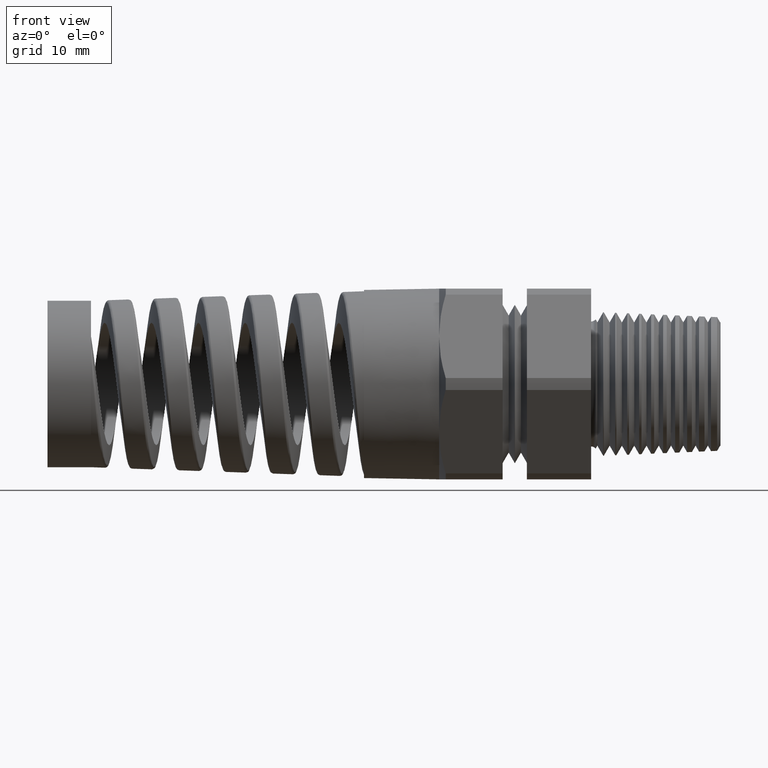
[diagram: clean part render]
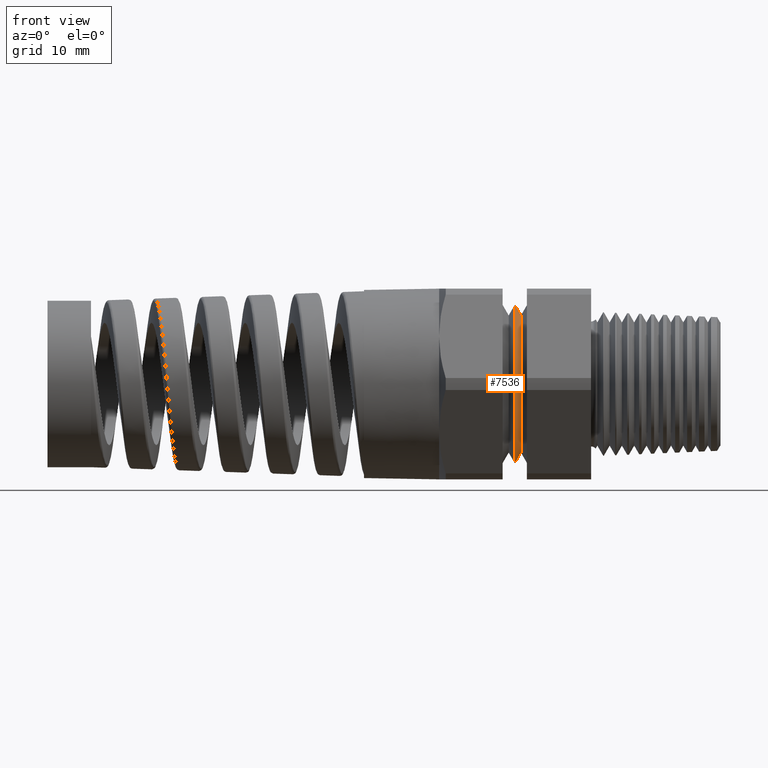
[diagram: same view with one face highlighted and labeled with its STEP entity id]
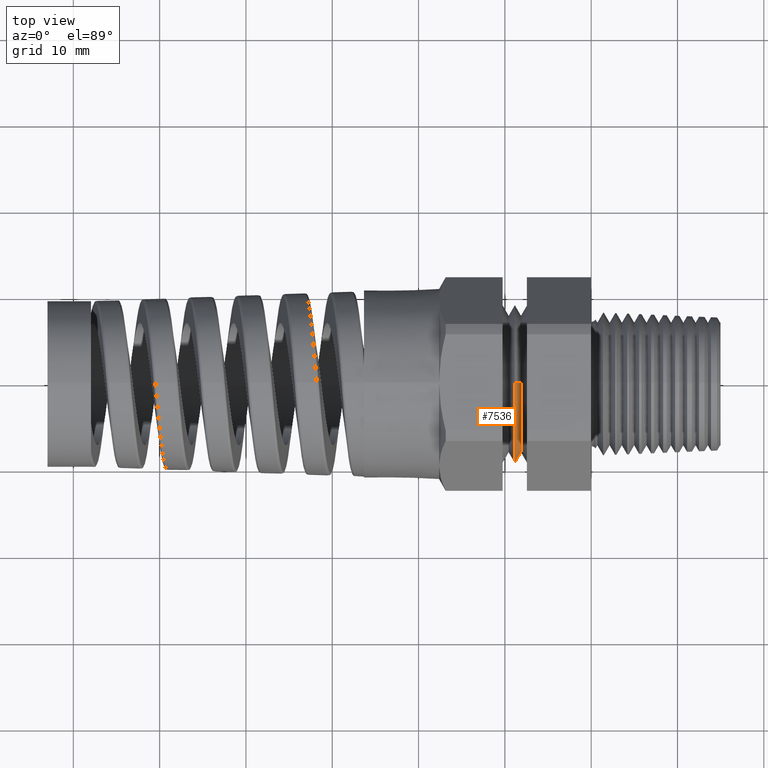
[diagram: same view with one face highlighted and labeled with its STEP entity id]
A machine part, front view. The second image highlights one B-rep face of the part: STEP entity #7536.
A second angle (top view) of the same face is appended — the face is thin or edge-on in the first view.
In plain terms, the highlighted conical surface has half-angle 60 deg.
Its self-contained STEP definition (entity closure, byte-faithful):
#7092 = VERTEX_POINT ( 'NONE', #8800 ) ;
#7093 = VERTEX_POINT ( 'NONE', #8799 ) ;
#7095 = EDGE_CURVE ( 'NONE', #7092, #7096, #8798, .T. ) ;
#7096 = VERTEX_POINT ( 'NONE', #8794 ) ;
#7099 = VERTEX_POINT ( 'NONE', #8788 ) ;
#7101 = EDGE_CURVE ( 'NONE', #7093, #7099, #8787, .T. ) ;
#7433 = EDGE_CURVE ( 'NONE', #7099, #7096, #9429, .T. ) ;
#7515 = ORIENTED_EDGE ( 'NONE', *, *, #7101, .T. ) ;
#7516 = ORIENTED_EDGE ( 'NONE', *, *, #7433, .T. ) ;
#7533 = EDGE_CURVE ( 'NONE', #7093, #7092, #9559, .T. ) ;
#7536 = ADVANCED_FACE ( 'NONE', ( #9560 ), #9622, .T. ) ;
#7587 = EDGE_LOOP ( 'NONE', ( #7588, #7589, #7515, #7516 ) ) ;
#7588 = ORIENTED_EDGE ( 'NONE', *, *, #7095, .F. ) ;
#7589 = ORIENTED_EDGE ( 'NONE', *, *, #7533, .F. ) ;
#8786 = CARTESIAN_POINT ( 'NONE',  ( -0.3477500000000000000, 0.0000000000000000000, 0.3604000000000000500 ) ) ;
#8787 = LINE ( 'NONE', #8786, #8847 ) ;
#8788 = CARTESIAN_POINT ( 'NONE',  ( -0.3477500000000000000, 0.0000000000000000000, 0.3604000000000000500 ) ) ;
#8794 = CARTESIAN_POINT ( 'NONE',  ( -0.3477500000000000000, 4.413627064127062000E-017, -0.3604000000000000500 ) ) ;
#8795 = DIRECTION ( 'NONE',  ( -0.4999999999999962800, 1.060575238724909500E-016, -0.8660254037844408200 ) ) ;
#8796 = VECTOR ( 'NONE', #8795, 39.37007874015748100 ) ;
#8797 = CARTESIAN_POINT ( 'NONE',  ( -0.3477500000000000000, 4.413627064127062000E-017, -0.3604000000000000500 ) ) ;
#8798 = LINE ( 'NONE', #8797, #8796 ) ;
#8799 = CARTESIAN_POINT ( 'NONE',  ( -0.3202500128218782600, 4.121969009463375200E-017, 0.3127686250000000200 ) ) ;
#8800 = CARTESIAN_POINT ( 'NONE',  ( -0.3202500128218782600, 0.0000000000000000000, -0.3127686250000000200 ) ) ;
#8846 = DIRECTION ( 'NONE',  ( -0.4999999999999962800, 0.0000000000000000000, 0.8660254037844408200 ) ) ;
#8847 = VECTOR ( 'NONE', #8846, 39.37007874015748100 ) ;
#9426 = DIRECTION ( 'NONE',  ( 0.0000000000000000000, 0.0000000000000000000, -1.000000000000000000 ) ) ;
#9427 = DIRECTION ( 'NONE',  ( 1.000000000000000000, 0.0000000000000000000, 0.0000000000000000000 ) ) ;
#9428 = AXIS2_PLACEMENT_3D ( 'NONE', #9436, #9427, #9426 ) ;
#9429 = CIRCLE ( 'NONE', #9428, 0.3604000000000000500 ) ;
#9436 = CARTESIAN_POINT ( 'NONE',  ( -0.3477500000000000000, 0.0000000000000000000, 0.0000000000000000000 ) ) ;
#9555 = CARTESIAN_POINT ( 'NONE',  ( -0.3477500000000000000, 0.0000000000000000000, 0.0000000000000000000 ) ) ;
#9556 = DIRECTION ( 'NONE',  ( 0.0000000000000000000, 0.0000000000000000000, -1.000000000000000000 ) ) ;
#9557 = DIRECTION ( 'NONE',  ( 1.000000000000000000, 0.0000000000000000000, 0.0000000000000000000 ) ) ;
#9558 = AXIS2_PLACEMENT_3D ( 'NONE', #9564, #9557, #9556 ) ;
#9559 = CIRCLE ( 'NONE', #9558, 0.3127686250000000200 ) ;
#9560 = FACE_OUTER_BOUND ( 'NONE', #7587, .T. ) ;
#9564 = CARTESIAN_POINT ( 'NONE',  ( -0.3202500128218782600, 0.0000000000000000000, 0.0000000000000000000 ) ) ;
#9619 = DIRECTION ( 'NONE',  ( 0.0000000000000000000, 0.0000000000000000000, 1.000000000000000000 ) ) ;
#9620 = DIRECTION ( 'NONE',  ( -1.000000000000000000, 0.0000000000000000000, 0.0000000000000000000 ) ) ;
#9621 = AXIS2_PLACEMENT_3D ( 'NONE', #9555, #9620, #9619 ) ;
#9622 = CONICAL_SURFACE ( 'NONE', #9621, 0.3604000000000000500, 1.047197551196602100 ) ;